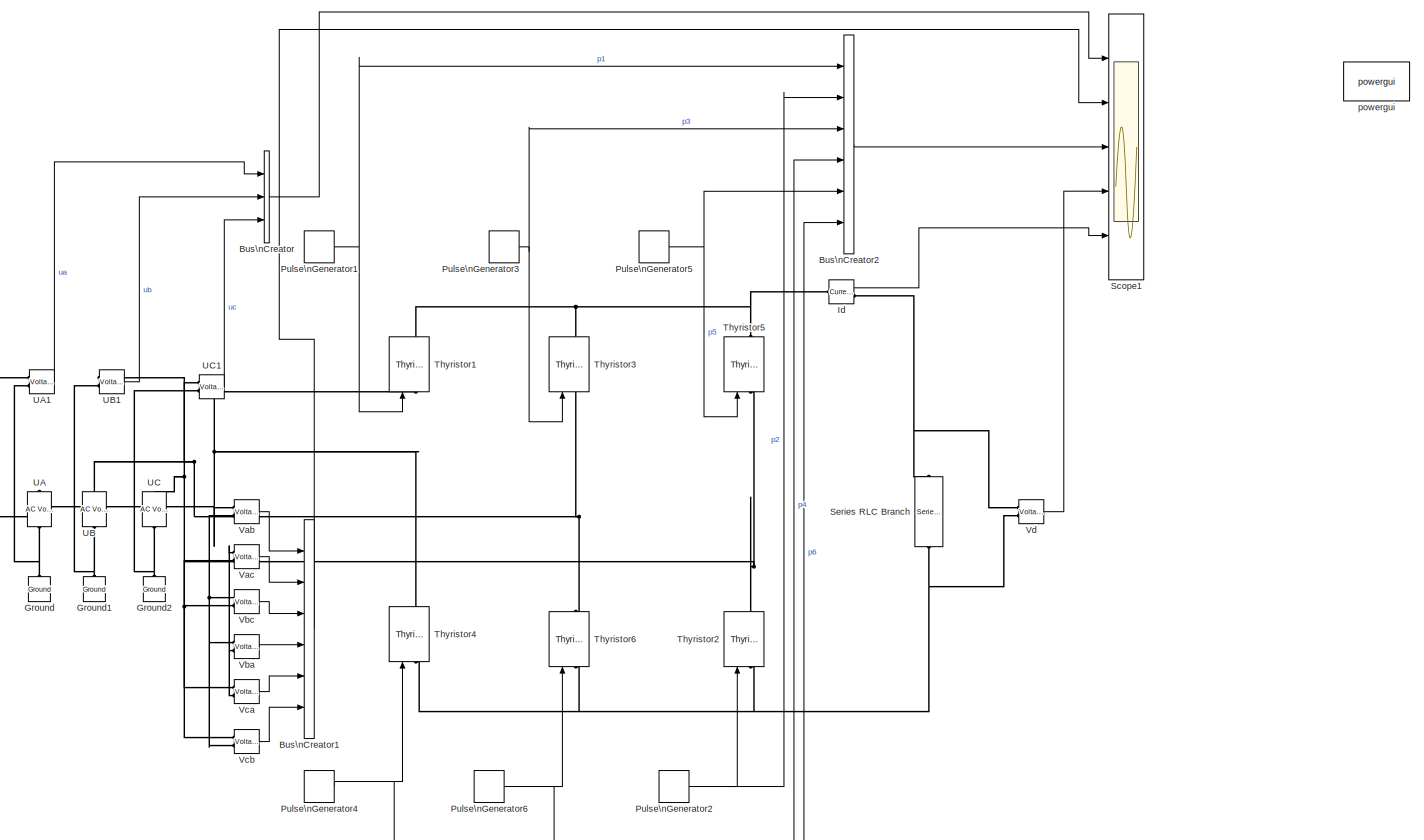
[diagram: root canvas - part 1/1, most of the canvas]
MODEL threebrigeconvertor6
KIND model
BLOCK [BusCreator] Bus\nCreator
  DisplayOption = bar
  Inputs = 3
  Ports = [3, 1]
  SID = 35
BLOCK [BusCreator] Bus\nCreator1
  DisplayOption = bar
  Inputs = 6
  Ports = [6, 1]
  SID = 43
BLOCK [BusCreator] Bus\nCreator2
  DisplayOption = bar
  Inputs = 6
  Ports = [6, 1]
  SID = 45
BLOCK [Reference] Ground  REF=powerlib/Elements/Ground
  LConnTagsString = a
  Ports = [0, 0, 0, 0, 0, 1]
  SID = 17
  SourceBlock = powerlib/Elements/Ground
  SourceType = Ground
BLOCK [Reference] Ground1  REF=powerlib/Elements/Ground
  LConnTagsString = a
  Ports = [0, 0, 0, 0, 0, 1]
  SID = 18
  SourceBlock = powerlib/Elements/Ground
  SourceType = Ground
BLOCK [Reference] Ground2  REF=powerlib/Elements/Ground
  LConnTagsString = a
  Ports = [0, 0, 0, 0, 0, 1]
  SID = 19
  SourceBlock = powerlib/Elements/Ground
  SourceType = Ground
BLOCK [Reference] Id  REF=powerlib/Measurements/Current Measurement
  OutputType = Complex
  PSBequivalent = 0
  PhasorSimulation = off
  Ports = [0, 1, 0, 0, 0, 1, 1]
  SID = 4
  SourceBlock = powerlib/Measurements/Current Measurement
  SourceType = Current Measurement
BLOCK [DiscretePulseGenerator] Pulse\nGenerator1
  Amplitude = 5
  Period = 1/50
  PhaseDelay = (60+30)/360*0.02
  Ports = [0, 1]
  PulseType = Time based
  PulseWidth = 20
  SID = 15
BLOCK [DiscretePulseGenerator] Pulse\nGenerator2
  Amplitude = 5
  Period = 1/50
  PhaseDelay = (60+30+60)/360*0.02
  Ports = [0, 1]
  PulseType = Time based
  PulseWidth = 20
  SID = 27
BLOCK [DiscretePulseGenerator] Pulse\nGenerator3
  Amplitude = 5
  Period = 1/50
  PhaseDelay = (60+30+120)/360*0.02
  Ports = [0, 1]
  PulseType = Time based
  PulseWidth = 20
  SID = 28
BLOCK [DiscretePulseGenerator] Pulse\nGenerator4
  Amplitude = 5
  Period = 1/50
  PhaseDelay = (60+30+180)/360*0.02
  Ports = [0, 1]
  PulseType = Time based
  PulseWidth = 20
  SID = 29
BLOCK [DiscretePulseGenerator] Pulse\nGenerator5
  Amplitude = 5
  Period = 1/50
  PhaseDelay = (60+30+240)/360*0.02
  Ports = [0, 1]
  PulseType = Time based
  PulseWidth = 20
  SID = 30
BLOCK [DiscretePulseGenerator] Pulse\nGenerator6
  Amplitude = 5
  Period = 1/50
  PhaseDelay = (60+30+300)/360*0.02
  Ports = [0, 1]
  PulseType = Time based
  PulseWidth = 20
  SID = 31
BLOCK [Scope] Scope1
  DataFormat = StructureWithTime
  Floating = off
  NumInputPorts = 5
  Ports = [5]
  SID = 44
  SampleTime = 0
  SaveName = ScopeData1
  YMax = 5~5~5~5~5
  YMin = -5~-5~-5~-5~-5
BLOCK [Reference] Series RLC Branch  REF=powerlib/Elements/Series RLC Branch
  BranchType = RL
  Capacitance = 1e-6
  Inductance = 1e-3
  InitialCurrent = 0
  InitialVoltage = 0
  LConnTagsString = __new0
  Measurements = None
  Ports = [0, 0, 0, 0, 0, 1, 1]
  RConnTagsString = __new0
  Resistance = 2
  SID = 16
  SetiL0 = off
  Setx0 = off
  SourceBlock = powerlib/Elements/Series RLC Branch
  SourceType = Series RLC Branch
BLOCK [Reference] Thyristor1  REF=powerlib/Power\nElectronics/Thyristor
  Cs = 250e-9
  IC = 0
  Lon = 0
  Measurements = on
  Ports = [1, 1, 0, 0, 0, 1, 1]
  Ron = 0.001
  Rs = 500
  SID = 3
  SourceBlock = powerlib/Power\nElectronics/Thyristor
  SourceType = Thyristor
  Vf = 0.8
BLOCK [Reference] Thyristor2  REF=powerlib/Power\nElectronics/Thyristor
  Cs = 250e-9
  IC = 0
  Lon = 0
  Measurements = on
  Ports = [1, 1, 0, 0, 0, 1, 1]
  Ron = 0.001
  Rs = 500
  SID = 7
  SourceBlock = powerlib/Power\nElectronics/Thyristor
  SourceType = Thyristor
  Vf = 0.8
BLOCK [Reference] Thyristor3  REF=powerlib/Power\nElectronics/Thyristor
  Cs = 250e-9
  IC = 0
  Lon = 0
  Measurements = on
  Ports = [1, 1, 0, 0, 0, 1, 1]
  Ron = 0.001
  Rs = 500
  SID = 8
  SourceBlock = powerlib/Power\nElectronics/Thyristor
  SourceType = Thyristor
  Vf = 0.8
BLOCK [Reference] Thyristor4  REF=powerlib/Power\nElectronics/Thyristor
  Cs = 250e-9
  IC = 0
  Lon = 0
  Measurements = on
  Ports = [1, 1, 0, 0, 0, 1, 1]
  Ron = 0.001
  Rs = 500
  SID = 9
  SourceBlock = powerlib/Power\nElectronics/Thyristor
  SourceType = Thyristor
  Vf = 0.8
BLOCK [Reference] Thyristor5  REF=powerlib/Power\nElectronics/Thyristor
  Cs = 250e-9
  IC = 0
  Lon = 0
  Measurements = on
  Ports = [1, 1, 0, 0, 0, 1, 1]
  Ron = 0.001
  Rs = 500
  SID = 10
  SourceBlock = powerlib/Power\nElectronics/Thyristor
  SourceType = Thyristor
  Vf = 0.8
BLOCK [Reference] Thyristor6  REF=powerlib/Power\nElectronics/Thyristor
  Cs = 250e-9
  IC = 0
  Lon = 0
  Measurements = on
  Ports = [1, 1, 0, 0, 0, 1, 1]
  Ron = 0.001
  Rs = 500
  SID = 11
  SourceBlock = powerlib/Power\nElectronics/Thyristor
  SourceType = Thyristor
  Vf = 0.8
BLOCK [Reference] UA  REF=powerlib/Electrical\nSources/AC Voltage Source
  Amplitude = 100
  Frequency = 50
  Measurements = None
  Phase = 0
  Ports = [0, 0, 0, 0, 0, 1, 1]
  SID = 12
  SampleTime = 0
  SourceBlock = powerlib/Electrical\nSources/AC Voltage Source
  SourceType = AC Voltage Source
BLOCK [Reference] UA1  REF=powerlib/Measurements/Voltage Measurement
  OutputType = Complex
  PSBequivalent = 0
  PhasorSimulation = off
  Ports = [0, 1, 0, 0, 0, 2]
  SID = 5
  SourceBlock = powerlib/Measurements/Voltage Measurement
  SourceType = Voltage Measurement
BLOCK [Reference] UB  REF=powerlib/Electrical\nSources/AC Voltage Source
  Amplitude = 100
  Frequency = 50
  Measurements = None
  Phase = -120
  Ports = [0, 0, 0, 0, 0, 1, 1]
  SID = 13
  SampleTime = 0
  SourceBlock = powerlib/Electrical\nSources/AC Voltage Source
  SourceType = AC Voltage Source
BLOCK [Reference] UB1  REF=powerlib/Measurements/Voltage Measurement
  OutputType = Complex
  PSBequivalent = 0
  PhasorSimulation = off
  Ports = [0, 1, 0, 0, 0, 2]
  SID = 33
  SourceBlock = powerlib/Measurements/Voltage Measurement
  SourceType = Voltage Measurement
BLOCK [Reference] UC  REF=powerlib/Electrical\nSources/AC Voltage Source
  Amplitude = 100
  Frequency = 50
  Measurements = None
  Phase = -240
  Ports = [0, 0, 0, 0, 0, 1, 1]
  SID = 14
  SampleTime = 0
  SourceBlock = powerlib/Electrical\nSources/AC Voltage Source
  SourceType = AC Voltage Source
BLOCK [Reference] UC1  REF=powerlib/Measurements/Voltage Measurement
  OutputType = Complex
  PSBequivalent = 0
  PhasorSimulation = off
  Ports = [0, 1, 0, 0, 0, 2]
  SID = 34
  SourceBlock = powerlib/Measurements/Voltage Measurement
  SourceType = Voltage Measurement
BLOCK [Reference] Vab  REF=powerlib/Measurements/Voltage Measurement
  OutputType = Complex
  PSBequivalent = 0
  PhasorSimulation = off
  Ports = [0, 1, 0, 0, 0, 2]
  SID = 38
  SourceBlock = powerlib/Measurements/Voltage Measurement
  SourceType = Voltage Measurement
BLOCK [Reference] Vac  REF=powerlib/Measurements/Voltage Measurement
  OutputType = Complex
  PSBequivalent = 0
  PhasorSimulation = off
  Ports = [0, 1, 0, 0, 0, 2]
  SID = 37
  SourceBlock = powerlib/Measurements/Voltage Measurement
  SourceType = Voltage Measurement
BLOCK [Reference] Vba  REF=powerlib/Measurements/Voltage Measurement
  OutputType = Complex
  PSBequivalent = 0
  PhasorSimulation = off
  Ports = [0, 1, 0, 0, 0, 2]
  SID = 40
  SourceBlock = powerlib/Measurements/Voltage Measurement
  SourceType = Voltage Measurement
BLOCK [Reference] Vbc  REF=powerlib/Measurements/Voltage Measurement
  OutputType = Complex
  PSBequivalent = 0
  PhasorSimulation = off
  Ports = [0, 1, 0, 0, 0, 2]
  SID = 39
  SourceBlock = powerlib/Measurements/Voltage Measurement
  SourceType = Voltage Measurement
BLOCK [Reference] Vca  REF=powerlib/Measurements/Voltage Measurement
  OutputType = Complex
  PSBequivalent = 0
  PhasorSimulation = off
  Ports = [0, 1, 0, 0, 0, 2]
  SID = 41
  SourceBlock = powerlib/Measurements/Voltage Measurement
  SourceType = Voltage Measurement
BLOCK [Reference] Vcb  REF=powerlib/Measurements/Voltage Measurement
  OutputType = Complex
  PSBequivalent = 0
  PhasorSimulation = off
  Ports = [0, 1, 0, 0, 0, 2]
  SID = 42
  SourceBlock = powerlib/Measurements/Voltage Measurement
  SourceType = Voltage Measurement
BLOCK [Reference] Vd  REF=powerlib/Measurements/Voltage Measurement
  OutputType = Complex
  PSBequivalent = 0
  PhasorSimulation = off
  Ports = [0, 1, 0, 0, 0, 2]
  SID = 20
  SourceBlock = powerlib/Measurements/Voltage Measurement
  SourceType = Voltage Measurement
BLOCK [Reference] powergui  REF=powerlib/powergui
  DisableRonSwitches = off
  DisableSnubberDevices = off
  DisableVfSwitches = off
  DisplayEquations = off
  DisplayStyle = 1
  EnableUseOfTLC = off
  ErrMax = 1e-4
  FreqAxis = off
  FunctionMessages = off
  HookPort = off
  Interpol = off
  Iterations = 50
  MaxFrequency = 1000
  Pbase = 100e6
  Ports = []
  Priority = 1
  ResistiveCurrentMeasurement = off
  RestoreLinks = warning
  SID = 32
  SPID = off
  SampleTime = 50e-6
  ShowGrid = off
  SolverType = Tustin
  SourceBlock = powerlib/powergui
  SourceType = PSB option menu block
  StartTime = 0.0
  SwTol = 0
  UnitsV = kV
  UnitsW = MW
  UserDataPersistent = on
  Xlog = on
  Ylog = off
  ZoomFFT = off
  cycles = 1
  display = off
  echomessages = off
  frequency = 60
  frequencyindice = 50
  frequencyindicesteady = 1
  methode = off
  save = off
  variable = ZData
  x0status = blocks
LINE Bus\nCreator1:1 -> Scope1:2
LINE Bus\nCreator2:1 -> Scope1:3
LINE Bus\nCreator:1 -> Scope1:1
LINE Id:1 -> Scope1:5
NET Pulse\nGenerator1:1 -> Bus\nCreator2:1, Thyristor1:1
NET Pulse\nGenerator2:1 -> Bus\nCreator2:2, Thyristor2:1
NET Pulse\nGenerator3:1 -> Bus\nCreator2:3, Thyristor3:1
NET Pulse\nGenerator4:1 -> Bus\nCreator2:4, Thyristor4:1
NET Pulse\nGenerator5:1 -> Bus\nCreator2:5, Thyristor5:1
NET Pulse\nGenerator6:1 -> Bus\nCreator2:6, Thyristor6:1
LINE UA1:1 -> Bus\nCreator:1
LINE UB1:1 -> Bus\nCreator:2
LINE UC1:1 -> Bus\nCreator:3
LINE Vab:1 -> Bus\nCreator1:1
LINE Vac:1 -> Bus\nCreator1:2
LINE Vba:1 -> Bus\nCreator1:4
LINE Vbc:1 -> Bus\nCreator1:3
LINE Vca:1 -> Bus\nCreator1:5
LINE Vcb:1 -> Bus\nCreator1:6
LINE Vd:1 -> Scope1:4
PNET net1: Ground1:LConn1 -- UB1:LConn2 -- UB:LConn1
PNET net2: Ground2:LConn1 -- UC1:LConn2 -- UC:LConn1
PNET net3: Ground:LConn1 -- UA1:LConn2 -- UA:LConn1
PNET net4: Id:LConn1 -- Thyristor1:RConn1 -- Thyristor3:RConn1 -- Thyristor5:RConn1
PNET net5: Id:RConn1 -- Series RLC Branch:LConn1 -- Vd:LConn1
PNET net6: Series RLC Branch:RConn1 -- Thyristor2:LConn1 -- Thyristor4:LConn1 -- Thyristor6:LConn1 -- Vd:LConn2
PNET net7: Thyristor1:LConn1 -- Thyristor4:RConn1 -- UA1:LConn1 -- UA:RConn1 -- Vab:LConn1 -- Vac:LConn1 -- Vba:LConn2 -- Vca:LConn2
PNET net8: Thyristor2:RConn1 -- Thyristor5:LConn1 -- UC1:LConn1 -- UC:RConn1 -- Vac:LConn2 -- Vbc:LConn2 -- Vca:LConn1 -- Vcb:LConn1
PNET net9: Thyristor3:LConn1 -- Thyristor6:RConn1 -- UB1:LConn1 -- UB:RConn1 -- Vab:LConn2 -- Vba:LConn1 -- Vbc:LConn1 -- Vcb:LConn2
note: NET lines group one-source signal fan-out (src -> all destinations, sorted); 1:1 wires keep LINE; PNET lines group multi-terminal physical nets as a canonical sorted terminal list (undirected conserving connections); 2-terminal nets keep the pairwise PLINE form
